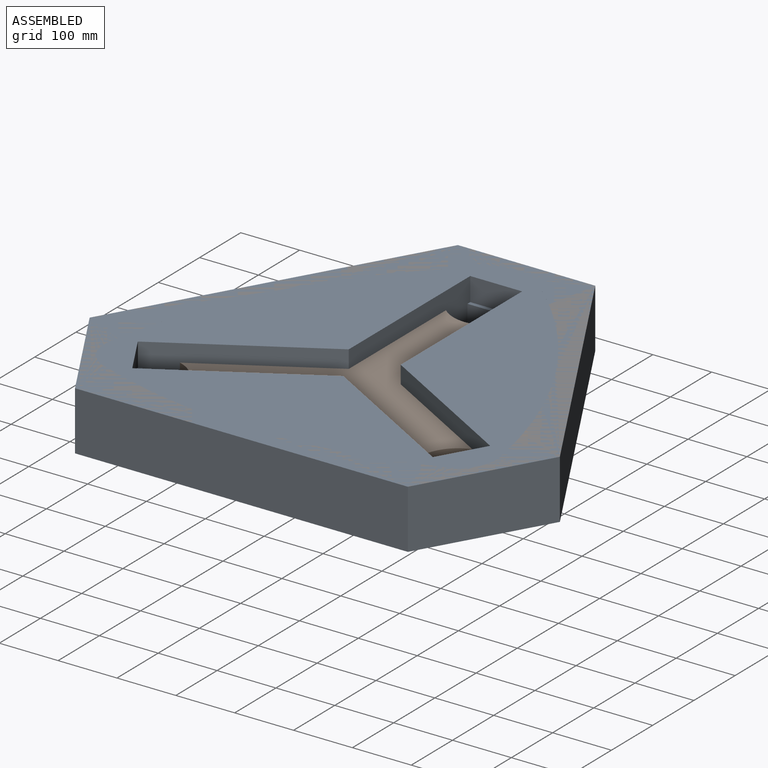
[diagram: assembled view]
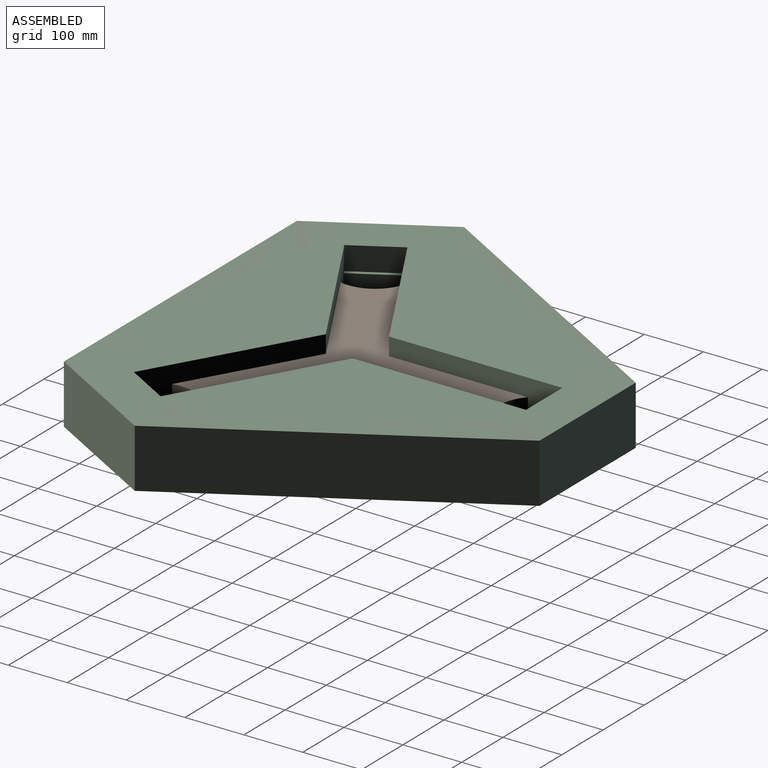
[diagram: assembled view, second angle]
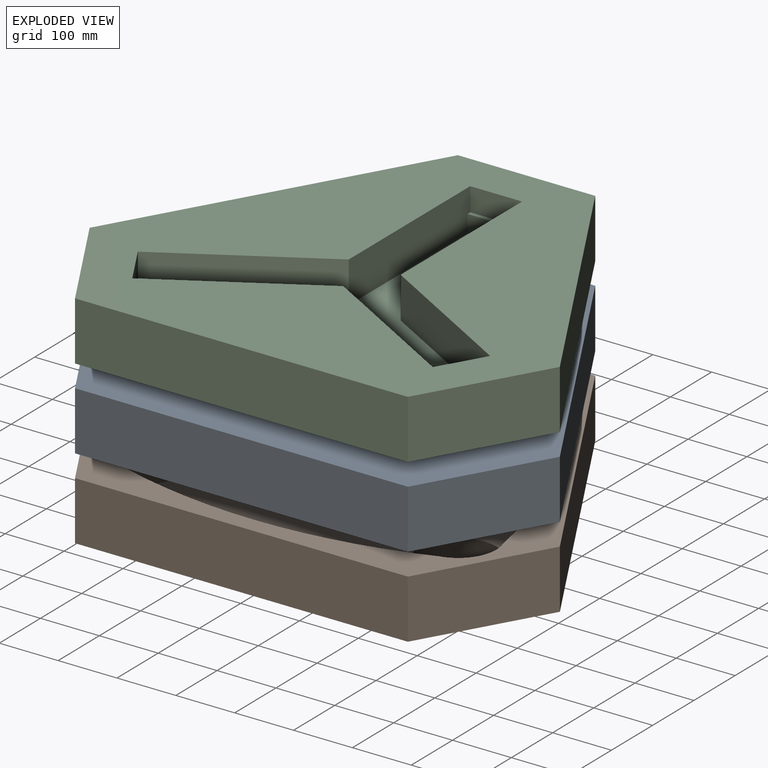
[diagram: exploded view]
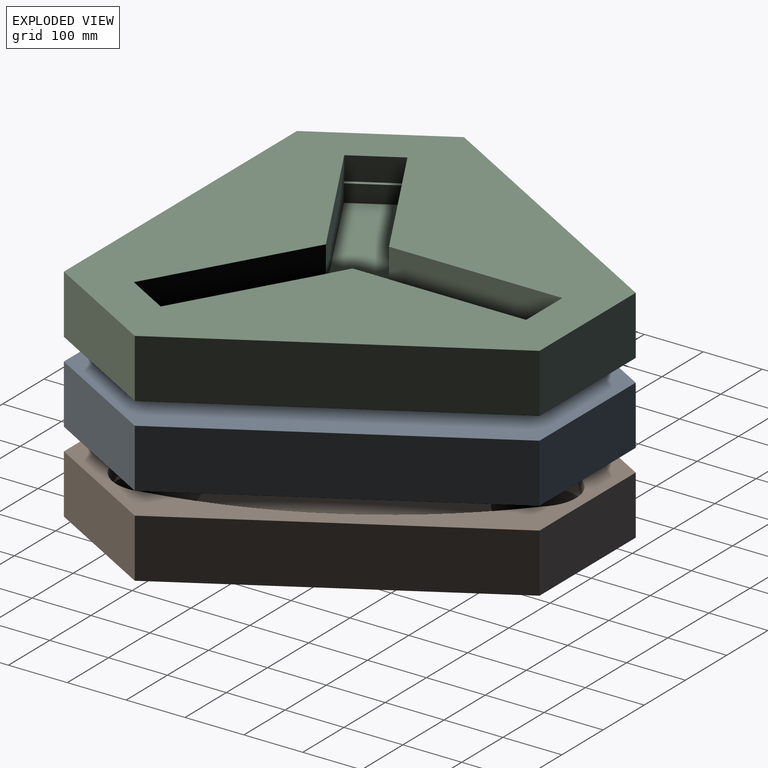
[diagram: exploded view, second angle]
FCSTD DOCUMENT  (FreeCAD 0.21R32532 (Git))
Label: styrofoam
License: All rights reserved
LicenseURL: http://en.wikipedia.org/wiki/All_rights_reserved
objects: Part::FeaturePython×10, Path::FeaturePython×9, App::DocumentObjectGroup×6, App::Link×3, App::FeaturePython×2
note: 15 computed .brp shape members not serialized (recipe doc carries the construction recipe); baked Part::Feature solids carry a one-line shape summary decoded from their .brp
EXTERNAL_REF file=composit_full_size2part_model.FCStd obj=top001
EXTERNAL_REF file=composit_full_size2part_model.FCStd obj=bottom001

FEATURE [App::Link] Link
  LinkedObject = -> <external composit_full_size2part_model.FCStd>#top001
  expr: LinkedObject = composit_full_size2part_model#top001._self
FEATURE [App::Link] Link001
  LinkedObject = -> <external composit_full_size2part_model.FCStd>#bottom001
  expr: LinkedObject = composit_full_size2part_model#bottom001._self
FEATURE [App::Link] Link002  label="top001"
  LinkedObject = -> <external composit_full_size2part_model.FCStd>#top001
FEATURE [App::FeaturePython] SetupSheet  # Path/CAM operation (typed FeaturePython)
  ClearanceHeightExpression = OpStockZMax+SetupSheet.ClearanceHeightOffset
  ClearanceHeightOffset = 5
  CoolantMode = 0
  CoolantModes = None | Flood | Mist
  FinalDepthExpression = OpFinalDepth
  HorizRapid = 0
  ProfileDirection = 1
  ProfileprocessCircles = true
  ProfileprocessHoles = true
  ProfileprocessPerimeter = true
  SafeHeightExpression = OpStockZMax+SetupSheet.SafeHeightOffset
  SafeHeightOffset = 3
  StartDepthExpression = OpStartDepth
  StepDownExpression = OpToolDiameter
  VertRapid = 0
FEATURE [Part::FeaturePython] Clone  label="Model-Link001"  # Draft clone (typed FeaturePython)
  AttacherType = Attacher::AttachEngine3D
  Fuse = false
  Objects = -> [Link001]
  PathResource = Model
  Placement = pos=(298,399.448,0) rot=(0,0,1;0.523599rad)
  Scale = (1,1,1)
FEATURE [Part::FeaturePython] Clone001  label="Model-top001"  # Draft clone (typed FeaturePython)
  AttacherType = Attacher::AttachEngine3D
  Fuse = false
  Objects = -> [Link002]
  PathResource = Model
  Placement = pos=(682,892.448,0) rot=(0,0,-1;0.523599rad)
  Scale = (1,1,1)
FEATURE [App::DocumentObjectGroup] Model
  Group = -> [Clone,Clone001]
FEATURE [Part::FeaturePython] Stock001  # WARN: FeaturePython — macro-defined, semantics opaque (R4)
  Height = 100
  Length = 1000
  StockType = CreateBox
  Width = 2000
FEATURE [Part::FeaturePython] ToolBit001  label="15.5mm Endmill"  # Path/CAM toolbit (typed FeaturePython)
  BitPropertyNames = Chipload | CuttingEdgeHeight | Diameter | Flutes | Length | Material | ShankDiameter | SpindleDirection
  BitShape = <path>
  Chipload = 0
  CuttingEdgeHeight = 80
  Diameter = 15.5
  File = <userpath>/.local/share/FreeCAD/Macro/Bit/15.5mm_Endmill.fctb
  Flutes = 0
  Length = 131
  Material = 0
  ShankDiameter = 10
  ShapeName = endmill
  SpindleDirection = 0
FEATURE [Path::FeaturePython] _5_5mm_Endmill  label="15.5mm Endmill001"  # Path/CAM operation (typed FeaturePython)
  HorizFeed = 100
  HorizRapid = 0
  SpindleDir = 0
  SpindleSpeed = 18000
  Tool = -> ToolBit001
  ToolNumber = 2
  VertFeed = 16.6667
  VertRapid = 0
  expr: HorizRapid = SetupSheet.HorizRapid
  expr: VertRapid = SetupSheet.VertRapid
FEATURE [App::DocumentObjectGroup] Tools
  Group = -> [_5_5mm_Endmill]
FEATURE [Path::FeaturePython] Pocket_Shape  # Path/CAM operation (typed FeaturePython)
  Active = true
  AreaParams:
    Tolerance = 1e-07
    FitArcs = True
    Simplify = False
    CleanDistance = 0.0
    Accuracy = 0.01
    Unit = 1.0
    MinArcPoints = 4
    MaxArcPoints = 100
    ClipperScale = 10000000.0
    Fill = 0
    Coplanar = 0
    Reorient = True
    Outline = False
    Explode = False
    OpenMode = 0
    Deflection = 0.01
    SubjectFill = 0
    ClipFill = 0
    Offset = 0.0
    ExtraPass = 0
    Stepover = 0.0
    LastStepover = 0.0
    JoinType = 0
    EndType = 0
    MiterLimit = 2.0
    RoundPrecision = 0.0
    PocketMode = 2
    ToolRadius = 7.75
    PocketExtraOffset = 0.0
    PocketStepover = 13.950000000000001
    PocketLastStepover = 0.0
    FromCenter = True
    Angle = 45.0
    AngleShift = 0.0
    Shift = 0.0
    Thicken = False
    SectionCount = -1
    Stepdown = 1.0
    SectionOffset = 0.0
    SectionTolerance = 1e-07
    SectionMode = 2
    Project = False
  Base = -> [Clone]
  ClearanceHeight = 105
  CoolantMode = 0
  CutMode = 0
  CycleTime = 00:03:19
  ExtensionCorners = true
  ExtensionLengthDefault = 7.75
  ExtraOffset = 0
  FinalDepth = 70
  FinishDepth = 0
  KeepToolDown = true
  MinTravel = false
  OffsetPattern = 1
  OpFinalDepth = 70
  OpStartDepth = 100
  OpStockZMax = 100
  OpStockZMin = 0
  OpToolDiameter = 15.5
  PathParams:
    orientation = 1
    feedrate = 100.0
    feedrate_v = 16.666666666666668
    verbose = True
    resume_height = 103.0
    retraction = 105.0
    return_end = True
    preamble = False
    threshold = 15.50775
  PocketLastStepOver = 0
  SafeHeight = 103
  SplitArcs = false
  StartAt = 0
  StartDepth = 100
  StartPoint = (0,0,0)
  StepDown = 80
  StepOver = 90
  ToolController = -> _5_5mm_Endmill
  UseOutline = false
  UseStartPoint = false
  ZigZagAngle = 45
  expr: ClearanceHeight = OpStockZMax + SetupSheet.ClearanceHeightOffset
  expr: ExtensionLengthDefault = OpToolDiameter / 2
  expr: FinalDepth = OpFinalDepth
  expr: SafeHeight = OpStockZMax + SetupSheet.SafeHeightOffset
  expr: StartDepth = OpStartDepth
FEATURE [Path::FeaturePython] Pocket_Shape001  # Path/CAM operation (typed FeaturePython)
  Active = true
  AreaParams:
    Tolerance = 1e-07
    FitArcs = True
    Simplify = False
    CleanDistance = 0.0
    Accuracy = 0.01
    Unit = 1.0
    MinArcPoints = 4
    MaxArcPoints = 100
    ClipperScale = 10000000.0
    Fill = 0
    Coplanar = 0
    Reorient = True
    Outline = False
    Explode = False
    OpenMode = 0
    Deflection = 0.01
    SubjectFill = 0
    ClipFill = 0
    Offset = 0.0
    ExtraPass = 0
    Stepover = 0.0
    LastStepover = 0.0
    JoinType = 0
    EndType = 0
    MiterLimit = 2.0
    RoundPrecision = 0.0
    PocketMode = 2
    ToolRadius = 7.75
    PocketExtraOffset = 0.0
    PocketStepover = 15.5
    PocketLastStepover = 0.0
    FromCenter = True
    Angle = 45.0
    AngleShift = 0.0
    Shift = 0.0
    Thicken = False
    SectionCount = -1
    Stepdown = 1.0
    SectionOffset = 0.0
    SectionTolerance = 1e-07
    SectionMode = 2
    Project = False
  Base = -> [Clone001]
  ClearanceHeight = 105
  CoolantMode = 0
  CutMode = 0
  CycleTime = 00:01:59
  ExtensionCorners = true
  ExtensionLengthDefault = 7.75
  ExtraOffset = 0
  FinalDepth = 30
  FinishDepth = 0
  KeepToolDown = true
  MinTravel = false
  OffsetPattern = 1
  OpFinalDepth = 30
  OpStartDepth = 100
  OpStockZMax = 100
  OpStockZMin = 0
  OpToolDiameter = 15.5
  PathParams:
    orientation = 1
    feedrate = 100.0
    feedrate_v = 16.666666666666668
    verbose = True
    resume_height = 103.0
    retraction = 105.0
    return_end = True
    preamble = False
    threshold = 15.50775
  PocketLastStepOver = 0
  SafeHeight = 103
  SplitArcs = false
  StartAt = 0
  StartDepth = 100
  StartPoint = (0,0,0)
  StepDown = 80
  StepOver = 100
  ToolController = -> _5_5mm_Endmill
  UseOutline = false
  UseStartPoint = false
  ZigZagAngle = 45
  expr: ClearanceHeight = OpStockZMax + SetupSheet.ClearanceHeightOffset
  expr: ExtensionLengthDefault = OpToolDiameter / 2
  expr: FinalDepth = OpFinalDepth
  expr: SafeHeight = OpStockZMax + SetupSheet.SafeHeightOffset
  expr: StartDepth = OpStartDepth
FEATURE [Path::FeaturePython] Pocket_Shape002  # Path/CAM operation (typed FeaturePython)
  Active = true
  AreaParams:
    Tolerance = 1e-07
    FitArcs = True
    Simplify = False
    CleanDistance = 0.0
    Accuracy = 0.01
    Unit = 1.0
    MinArcPoints = 4
    MaxArcPoints = 100
    ClipperScale = 10000000.0
    Fill = 0
    Coplanar = 0
    Reorient = True
    Outline = False
    Explode = False
    OpenMode = 0
    Deflection = 0.01
    SubjectFill = 0
    ClipFill = 0
    Offset = 0.0
    ExtraPass = 0
    Stepover = 0.0
    LastStepover = 0.0
    JoinType = 0
    EndType = 0
    MiterLimit = 2.0
    RoundPrecision = 0.0
    PocketMode = 2
    ToolRadius = 7.75
    PocketExtraOffset = 0.0
    PocketStepover = 15.5
    PocketLastStepover = 0.0
    FromCenter = True
    Angle = 45.0
    AngleShift = 0.0
    Shift = 0.0
    Thicken = False
    SectionCount = -1
    Stepdown = 1.0
    SectionOffset = 0.0
    SectionTolerance = 1e-07
    SectionMode = 2
    Project = False
  Base = -> [Clone001]
  ClearanceHeight = 105
  CoolantMode = 0
  CutMode = 0
  CycleTime = 00:01:02
  ExtensionCorners = true
  ExtensionLengthDefault = 7.75
  ExtraOffset = 0
  FinalDepth = 60
  FinishDepth = 0
  KeepToolDown = true
  MinTravel = false
  OffsetPattern = 1
  OpFinalDepth = 60
  OpStartDepth = 100
  OpStockZMax = 100
  OpStockZMin = 0
  OpToolDiameter = 15.5
  PathParams = {'orientation': 1, 'feedrate': 100.0, 'feedrate_v': 16.666666666666668, 'verbose': True, 'resume_height': 103.0, 'retraction': 105.0, 'return_end': True, 'preamble': False, 'threshold': 15.50775, 'start': Vector (826.935811360026, 1192.9345651841047, 60.00000000000003)}
  PocketLastStepOver = 0
  SafeHeight = 103
  SplitArcs = false
  StartAt = 0
  StartDepth = 100
  StartPoint = (0,0,0)
  StepDown = 80
  StepOver = 100
  ToolController = -> _5_5mm_Endmill
  UseOutline = false
  UseStartPoint = false
  ZigZagAngle = 45
  expr: ClearanceHeight = OpStockZMax + SetupSheet.ClearanceHeightOffset
  expr: ExtensionLengthDefault = OpToolDiameter / 2
  expr: FinalDepth = OpFinalDepth
  expr: SafeHeight = OpStockZMax + SetupSheet.SafeHeightOffset
  expr: StartDepth = OpStartDepth
FEATURE [Path::FeaturePython] Profile  # Path/CAM operation (typed FeaturePython)
  Active = true
  AreaParams:
    Tolerance = 1e-07
    FitArcs = True
    Simplify = False
    CleanDistance = 0.0
    Accuracy = 0.01
    Unit = 1.0
    MinArcPoints = 4
    MaxArcPoints = 100
    ClipperScale = 10000000.0
    Fill = 0
    Coplanar = 0
    Reorient = True
    Outline = False
    Explode = False
    OpenMode = 0
    Deflection = 0.01
    SubjectFill = 0
    ClipFill = 0
    Offset = 7.75
    ExtraPass = 0
    Stepover = 0.0
    LastStepover = 0.0
    JoinType = 0
    EndType = 0
    MiterLimit = 2.0
    RoundPrecision = 0.0
    PocketMode = 0
    ToolRadius = 1.0
    PocketExtraOffset = 0.0
    PocketStepover = 0.0
    PocketLastStepover = 0.0
    FromCenter = False
    Angle = 45.0
    AngleShift = 0.0
    Shift = 0.0
    Thicken = False
    SectionCount = -1
    Stepdown = 1.0
    SectionOffset = 0.0
    SectionTolerance = 1e-07
    SectionMode = 2
    Project = False
  Base = -> [Clone,Clone001]
  ClearanceHeight = 105
  CoolantMode = 0
  CycleTime = 00:03:11
  Direction = 1
  FinalDepth = 0
  HandleMultipleFeatures = 0
  JoinType = 0
  MiterLimit = 0.1
  OffsetExtra = 0
  OpFinalDepth = 0
  OpStartDepth = 100
  OpStockZMax = 100
  OpStockZMin = 0
  OpToolDiameter = 15.5
  PathParams = {'orientation': 0, 'feedrate': 100.0, 'feedrate_v': 16.666666666666668, 'verbose': True, 'resume_height': 103.0, 'retraction': 105.0, 'return_end': True, 'preamble': False, 'start': Vector (561.5251292985396, 429.90513612923536, 105.0)}
  SafeHeight = 103
  Side = 0
  SplitArcs = false
  StartDepth = 100
  StartPoint = (0,0,0)
  StepDown = 50
  ToolController = -> _5_5mm_Endmill
  UseComp = true
  UseStartPoint = false
  processCircles = true
  processHoles = true
  processPerimeter = true
  expr: ClearanceHeight = OpStockZMax + SetupSheet.ClearanceHeightOffset
  expr: FinalDepth = OpFinalDepth
  expr: SafeHeight = OpStockZMax + SetupSheet.SafeHeightOffset
  expr: StartDepth = OpStartDepth
  expr: StepDown = 50
FEATURE [App::DocumentObjectGroup] Operations
  Group = -> [Pocket_Shape,Pocket_Shape001,Pocket_Shape002,Profile]
FEATURE [Path::FeaturePython] Job  # Path/CAM operation (typed FeaturePython)
  CycleTime = 00:09:31
  Fixtures = G54
  GeometryTolerance = 0.01
  JobType = 0
  LastPostProcessDate = 2023-04-08 16:07:30.952859
  LastPostProcessOutput = <userpath>/56D3-E9D0/1.tap
  Model = -> Model
  Operations = -> Operations
  OrderOutputBy = 0
  PostProcessor = 1
  PostProcessorOutputFile = %d.%j.tap
  SetupSheet = -> SetupSheet
  SplitOutput = false
  Stock = -> Stock001
  Tools = -> Tools
FEATURE [App::FeaturePython] SetupSheet001  # Path/CAM operation (typed FeaturePython)
  ClearanceHeightExpression = OpStockZMax+SetupSheet001.ClearanceHeightOffset
  ClearanceHeightOffset = 5
  CoolantMode = 0
  CoolantModes = None | Flood | Mist
  FinalDepthExpression = OpFinalDepth
  HorizRapid = 0
  ProfileDirection = 1
  ProfileprocessCircles = true
  ProfileprocessHoles = true
  ProfileprocessPerimeter = true
  SafeHeightExpression = OpStockZMax+SetupSheet001.SafeHeightOffset
  SafeHeightOffset = 3
  StartDepthExpression = OpStartDepth
  StepDownExpression = OpToolDiameter
  VertRapid = 0
FEATURE [Part::FeaturePython] Clone002  label="Model-Link"  # Draft clone (typed FeaturePython)
  AttacherType = Attacher::AttachEngine3D
  Fuse = false
  Objects = -> [Link]
  PathResource = Model
  Placement = pos=(400.448,299,0) rot=(0,0,1;0rad)
  Scale = (1,1,1)
FEATURE [Part::FeaturePython] Clone003  label="Model-Link002"  # Draft clone (typed FeaturePython)
  AttacherType = Attacher::AttachEngine3D
  Fuse = false
  Objects = -> [Link]
  PathResource = Model
  Placement = pos=(400.448,995,0) rot=(0,0,1;0rad)
  Scale = (1,1,1)
FEATURE [Part::FeaturePython] Clone004  label="Model-Link003"  # Draft clone (typed FeaturePython)
  AttacherType = Attacher::AttachEngine3D
  Fuse = false
  Objects = -> [Link]
  PathResource = Model
  Placement = pos=(1038.45,393.865,0) rot=(0,0,1;3.14159rad)
  Scale = (1,1,1)
FEATURE [Part::FeaturePython] Clone005  label="Model-Link004"  # Draft clone (typed FeaturePython)
  AttacherType = Attacher::AttachEngine3D
  Fuse = false
  Objects = -> [Link]
  PathResource = Model
  Placement = pos=(1038.45,1089.86,0) rot=(0,0,1;3.14159rad)
  Scale = (1,1,1)
FEATURE [App::DocumentObjectGroup] Model001
  Group = -> [Clone002,Clone003,Clone004,Clone005]
FEATURE [Part::FeaturePython] ToolBit  label="3.175mm Endmill"  # Path/CAM toolbit (typed FeaturePython)
  BitPropertyNames = Chipload | CuttingEdgeHeight | Diameter | Flutes | Length | Material | ShankDiameter | SpindleDirection
  BitShape = <path>
  Chipload = 0
  CuttingEdgeHeight = 30
  Diameter = 3.17
  Flutes = 0
  Length = 10
  Material = 0
  ShankDiameter = 3
  ShapeName = endmill
  SpindleDirection = 0
FEATURE [Path::FeaturePython] __175mm_Endmill  label="3.175mm Endmill001"  # Path/CAM operation (typed FeaturePython)
  HorizFeed = 51.6667
  HorizRapid = 0
  SpindleDir = 0
  SpindleSpeed = 18000
  Tool = -> ToolBit
  ToolNumber = 1
  VertFeed = 16.6667
  VertRapid = 0
  expr: HorizRapid = SetupSheet001.HorizRapid
  expr: VertRapid = SetupSheet001.VertRapid
FEATURE [App::DocumentObjectGroup] Tools001
  Group = -> [__175mm_Endmill]
FEATURE [Part::FeaturePython] Stock  # WARN: FeaturePython — macro-defined, semantics opaque (R4)
  Base = -> Model001
  ExtXneg = 1
  ExtXpos = 1
  ExtYneg = 1
  ExtYpos = 1
  ExtZneg = 0
  ExtZpos = 1
  Placement = pos=(1,1,0) rot=(0,0,1;0rad)
  StockType = FromBase
FEATURE [Path::FeaturePython] Profile001  # Path/CAM operation (typed FeaturePython)
  Active = true
  AreaParams:
    Tolerance = 1e-07
    FitArcs = True
    Simplify = False
    CleanDistance = 0.0
    Accuracy = 0.01
    Unit = 1.0
    MinArcPoints = 4
    MaxArcPoints = 100
    ClipperScale = 10000000.0
    Fill = 0
    Coplanar = 0
    Reorient = True
    Outline = False
    Explode = False
    OpenMode = 0
    Deflection = 0.01
    SubjectFill = 0
    ClipFill = 0
    Offset = 1.585
    ExtraPass = 0
    Stepover = 0.0
    LastStepover = 0.0
    JoinType = 0
    EndType = 0
    MiterLimit = 2.0
    RoundPrecision = 0.0
    PocketMode = 0
    ToolRadius = 1.0
    PocketExtraOffset = 0.0
    PocketStepover = 0.0
    PocketLastStepover = 0.0
    FromCenter = False
    Angle = 45.0
    AngleShift = 0.0
    Shift = 0.0
    Thicken = False
    SectionCount = -1
    Stepdown = 1.0
    SectionOffset = 0.0
    SectionTolerance = 1e-07
    SectionMode = 2
    Project = False
  ClearanceHeight = 106
  CoolantMode = 0
  CycleTime = 00:04:30
  Direction = 1
  FinalDepth = 0
  HandleMultipleFeatures = 0
  JoinType = 0
  MiterLimit = 0.1
  OffsetExtra = 0
  OpFinalDepth = 0
  OpStartDepth = 101
  OpStockZMax = 101
  OpStockZMin = 0
  OpToolDiameter = 3.17
  PathParams = {'orientation': 0, 'feedrate': 51.666666666666664, 'feedrate_v': 16.666666666666668, 'verbose': True, 'resume_height': 104.00000000000028, 'retraction': 106.00000000000028, 'return_end': True, 'preamble': False, 'start': Vector (920.4072486770419, 695.1509324027542, 106.00000000000028)}
  SafeHeight = 104
  Side = 0
  SplitArcs = false
  StartDepth = 101
  StartPoint = (0,0,0)
  StepDown = 200
  ToolController = -> __175mm_Endmill
  UseComp = true
  UseStartPoint = false
  processCircles = true
  processHoles = true
  processPerimeter = true
  expr: ClearanceHeight = OpStockZMax + SetupSheet001.ClearanceHeightOffset
  expr: FinalDepth = OpFinalDepth
  expr: SafeHeight = OpStockZMax + SetupSheet001.SafeHeightOffset
  expr: StartDepth = OpStartDepth
  expr: StepDown = 200
FEATURE [App::DocumentObjectGroup] Operations001
  Group = -> [Profile001]
FEATURE [Path::FeaturePython] Job001  # Path/CAM operation (typed FeaturePython)
  CycleTime = 00:04:30
  Fixtures = G54
  GeometryTolerance = 0.01
  JobType = 0
  LastPostProcessDate = 2023-04-08 17:28:22.128911
  LastPostProcessOutput = <userpath>/56D3-E9D0/1.tap
  Model = -> Model001
  Operations = -> Operations001
  OrderOutputBy = 0
  PostProcessor = 1
  PostProcessorOutputFile = %d.%j.tap
  SetupSheet = -> SetupSheet001
  SplitOutput = false
  Stock = -> Stock
  Tools = -> Tools001
note: 2 file-system paths scrubbed to <path> (originals preserved in the JSON sidecar)

RESOLVED EXTERNAL PARTS (link-assembly join: the EXTERNAL_REF files above that resolve inside this repo's crawl, each included once):
---- part composit_full_size2part_model.FCStd = doc fcstd_fdf0de63ef48 ----
FCSTD DOCUMENT  (FreeCAD 0.21R32532 (Git))
Label: composit_full_size2part_model
License: All rights reserved
LicenseURL: http://en.wikipedia.org/wiki/All_rights_reserved
objects: App::Link×31, Part::FeaturePython×10, Sketcher::SketchObject×6, PartDesign::CoordinateSystem×4, PartDesign::SubShapeBinder×4, PartDesign::Pocket×4, App::DocumentObjectGroup×3, PartDesign::Body×3, PartDesign::Pad×2, App::FeaturePython×1, Part::Feature×1, PartDesign::FeatureBase×1, PartDesign::PolarPattern×1, App::Part×1
note: 42 computed .brp shape members not serialized (recipe doc carries the construction recipe); baked Part::Feature solids carry a one-line shape summary decoded from their .brp
EXTERNAL_REF file=composit_full_size2part.FCStd obj=Local_CS011
EXTERNAL_REF file=composit_full_size2part.FCStd obj=Body
EXTERNAL_REF file=composit_full_size2part.FCStd obj=Local_CS012
EXTERNAL_REF file=composit_full_size2part.FCStd obj=Body001
EXTERNAL_REF file=composit_full_size2part.FCStd obj=DatumPoint005
EXTERNAL_REF file=composit_full_size2part.FCStd obj=Local_CS066
EXTERNAL_REF file=composit_full_size2part.FCStd obj=Body020
EXTERNAL_REF file=basin_big.FCStd obj=Body_7
EXTERNAL_REF file=composit_full_size2part.FCStd obj=Body022
EXTERNAL_REF file=composit_full_size2part.FCStd obj=Local_CS051
EXTERNAL_REF file=composit_full_size2part.FCStd obj=Body019
EXTERNAL_REF file=composit_full_size2part.FCStd obj=Local_CS050
EXTERNAL_REF file=composit_full_size2part.FCStd obj=Local_CS052
EXTERNAL_REF file=composit_full_size2part.FCStd obj=basement_plywood
EXTERNAL_REF file=composit_full_size2part.FCStd obj=LCS_0
EXTERNAL_REF file=hub2108.FCStd obj=Local_CS001
EXTERNAL_REF file=hub2108.FCStd obj=Body
EXTERNAL_REF file=composit_full_size2part.FCStd obj=Local_CS068
EXTERNAL_REF file=hub2108.FCStd obj=Local_CS
EXTERNAL_REF file=composit_full_size2part.FCStd obj=Body042
EXTERNAL_REF file=composit_full_size2part.FCStd obj=Local_CS054
EXTERNAL_REF file=composit_full_size2part.FCStd obj=Local_CS067
EXTERNAL_REF file=composit_full_size2part.FCStd obj=Body028
EXTERNAL_REF file=composit_full_size2part.FCStd obj=Local_CS055
EXTERNAL_REF file=composit_full_size2part.FCStd obj=Local_CS069
EXTERNAL_REF file=composit_full_size2part.FCStd obj=Body029
EXTERNAL_REF file=composit_full_size2part.FCStd obj=Local_CS058
EXTERNAL_REF file=composit_full_size2part.FCStd obj=Local_CS059
EXTERNAL_REF file=composit_full_size2part.FCStd obj=Body034
EXTERNAL_REF file=composit_full_size2part.FCStd obj=Local_CS001
EXTERNAL_REF file=composit_full_size2part.FCStd obj=Local_CS064
EXTERNAL_REF file=composit_full_size2part.FCStd obj=Body041
EXTERNAL_REF file=composit_full_size2part.FCStd obj=Local_CS060
EXTERNAL_REF file=composit_full_size2part.FCStd obj=Local_CS061
EXTERNAL_REF file=composit_full_size2part.FCStd obj=Body033
EXTERNAL_REF file=composit_full_size2part.FCStd obj=Body045
EXTERNAL_REF file=composit_full_size2part.FCStd obj=Body048
EXTERNAL_REF file=composit_full_size2part.FCStd obj=Local_CS070
EXTERNAL_REF file=composit_full_size2part.FCStd obj=Part002
EXTERNAL_REF file=composit_full_size2part.FCStd obj=LCS_024
EXTERNAL_REF file=composit_full_size2part.FCStd obj=plexiglasss_shield
EXTERNAL_REF file=composit_full_size2part.FCStd obj=Local_CS005
EXTERNAL_REF file=ugol90degX40mm.FCStd obj=Local_CS
EXTERNAL_REF file=ugol90degX40mm.FCStd obj=Body
EXTERNAL_REF file=../Ручка-профиль CT2 L60.FCStd obj=Local_CS
EXTERNAL_REF file=../Ручка-профиль CT2 L60.FCStd obj=Body
EXTERNAL_REF file=composit_full_size2part.FCStd obj=Body049
EXTERNAL_REF file=composit_full_size2part.FCStd obj=Body043
EXTERNAL_REF file=composit_full_size2part.FCStd obj=Body026
EXTERNAL_REF file=composit_full_size2part.FCStd obj=Body050
EXTERNAL_REF file=composit_full_size2part.FCStd obj=Body051
EXTERNAL_REF file=composit_full_size2part.FCStd obj=Body054
EXTERNAL_REF file=composit_full_size2part_transport.FCStd obj=Body001
EXTERNAL_REF file=composit_full_size2part_transport.FCStd obj=Body
EXTERNAL_REF file=composit_full_size2part.FCStd obj=Local_CS073
EXTERNAL_REF file=composit_full_size2part.FCStd obj=Body058

FEATURE [PartDesign::CoordinateSystem] LCS_Origin
  AttacherType = Attacher::AttachEngine3D
  MapMode = 2
  Support = -> [X_Axis]
FEATURE [App::DocumentObjectGroup] Constraints
FEATURE [App::FeaturePython] Variables  # WARN: FeaturePython — macro-defined, semantics opaque (R4)
  Type = App::PropertyContainer
FEATURE [App::DocumentObjectGroup] Configurations
FEATURE [App::Link] Body_material_0_30ansi  label="Body_material_0.30ansi"
  AssemblyType = Part::Link
  AttachedBy = #Local_CS011
  AttachedTo = Parent Assembly#LCS_Origin
  LinkPlacement = pos=(0,8.37158,0) rot=(0,0,1;0rad)
  LinkedObject = -> <external composit_full_size2part.FCStd>#Body
  Placement = pos=(0,8.37158,0) rot=(0,0,1;0rad)
  SolverId = Asm4EE
  expr: Placement = LCS_Origin.Placement * AttachmentOffset * composit_full_size2part#Local_CS011.Placement ^ -1
FEATURE [App::Link] Body001_material_0_30ansi  label="Body001_material_0.30ansi"
  AssemblyType = Part::Link
  AttachedBy = #Local_CS012
  AttachedTo = Parent Assembly#LCS_Origin
  AttachmentOffset = pos=(0,0,0) rot=(0,0,1;4.18879rad)
  LinkPlacement = pos=(7.25,-4.18579,0) rot=(0,0,1;4.18879rad)
  LinkedObject = -> <external composit_full_size2part.FCStd>#Body001
  Placement = pos=(7.25,-4.18579,0) rot=(0,0,1;4.18879rad)
  SolverId = Asm4EE
  expr: Placement = LCS_Origin.Placement * AttachmentOffset * composit_full_size2part#Local_CS012.Placement ^ -1
FEATURE [App::Link] hor_amplifier
  AssemblyType = Part::Link
  AttachedBy = #Local_CS066
  AttachedTo = Body_material_0_30ansi#DatumPoint005
  AttachmentOffset = pos=(0,0,0) rot=(1,0,0;4.71239rad)
  LinkPlacement = pos=(1.7e-15,201.803,407.176) rot=(1,0,0;3.19975rad)
  LinkedObject = -> <external composit_full_size2part.FCStd>#Body020
  Placement = pos=(1.7e-15,201.803,407.176) rot=(1,0,0;3.19975rad)
  SolverId = Asm4EE
  expr: Placement = Body_material_0_30ansi.Placement * composit_full_size2part#DatumPoint005.Placement * AttachmentOffset * composit_full_size2part#Local_CS066.Placement ^ -1
FEATURE [PartDesign::CoordinateSystem] Local_CS044
  AttacherType = Attacher::AttachEngine3D
  MapMode = 4
  Placement = pos=(0,0,0) rot=(0.57735,0.57735,0.57735;2.0944rad)
  Support = -> [XY_Plane044]
FEATURE [Part::Feature] Part__Feature  label="module002"
  shape: bbox 170 x 148 x 41.12 mm, 715 faces (baked)
FEATURE [PartDesign::FeatureBase] BaseFeature
  BaseFeature = -> Part__Feature
FEATURE [PartDesign::Body] Body017
  BaseFeature = -> Part__Feature
  Group = -> [BaseFeature,Local_CS044]
  Origin = -> Origin044
  Tip = -> BaseFeature
FEATURE [App::DocumentObjectGroup] Parts
  Group = -> [Body017,Part__Feature]
FEATURE [App::Link] Body024_material_0_30ansi  label="Body024_material_0.30ansi"
  AssemblyType = Part::Link
  AttachedBy = #Local_CS049
  AttachedTo = Parent Assembly#LCS_Origin
  AttachmentOffset = pos=(0,0,3) rot=(0,0,1;-1.0472rad)
  LinkPlacement = pos=(0,0,3) rot=(0,0,1;5.23599rad)
  Placement = pos=(0,0,3) rot=(0,0,1;5.23599rad)
  SolverId = Asm4EE
  expr: Placement = LCS_Origin.Placement * AttachmentOffset * composit_full_size2part#Local_CS049.Placement ^ -1
FEATURE [App::Link] basin
  AssemblyType = Part::Link
  AttachedBy = #LCS_021
  AttachedTo = Parent Assembly#LCS_Origin
  LinkedObject = -> <external basin_big.FCStd>#Body_7
  SolverId = Asm4EE
  expr: LinkedObject = <<basin_big>>#<<basin>>._self
FEATURE [App::Link] basin_limiter_body
  LinkPlacement = pos=(0,0,0) rot=(0,0,1;2.0944rad)
  LinkedObject = -> <external composit_full_size2part.FCStd>#Body022
  Placement = pos=(0,0,0) rot=(0,0,1;2.0944rad)
FEATURE [App::Link] basement_proxy
  AssemblyType = Part::Link
  AttachedBy = #Local_CS051
  AttachedTo = Parent Assembly#LCS_Origin
  AttachmentOffset = pos=(0,0,0) rot=(0,0,1;-3.14159rad)
  LinkPlacement = pos=(0,0,-3) rot=(0,0,1;3.14159rad)
  LinkedObject = -> <external composit_full_size2part.FCStd>#Body019
  Placement = pos=(0,0,-3) rot=(0,0,1;3.14159rad)
  SolverId = Asm4EE
  expr: Placement = LCS_Origin.Placement * AttachmentOffset * composit_full_size2part#Local_CS051.Placement ^ -1
FEATURE [App::Link] basement_plywood
  AssemblyType = Part::Link
  AttachedBy = #Local_CS052
  AttachedTo = basement_proxy#Local_CS050
  AttachmentOffset = pos=(0,0,0) rot=(0,0,1;2.0944rad)
  LinkPlacement = pos=(0,0,-21) rot=(0,0,1;5.23599rad)
  LinkedObject = -> <external composit_full_size2part.FCStd>#basement_plywood
  Placement = pos=(0,0,-21) rot=(0,0,1;5.23599rad)
  SolverId = Asm4EE
  expr: Placement = basement_proxy.Placement * composit_full_size2part#Local_CS050.Placement * AttachmentOffset * composit_full_size2part#Local_CS052.Placement ^ -1
FEATURE [App::Link] hub2108
  AssemblyType = Part::Link
  AttachedBy = #Local_CS001
  AttachedTo = basement_plywood#LCS_0
  LinkPlacement = pos=(0,0,-88) rot=(0,0,1;5.23599rad)
  LinkedObject = -> <external hub2108.FCStd>#Body
  Placement = pos=(0,0,-88) rot=(0,0,1;5.23599rad)
  SolverId = Asm4EE
  expr: Placement = basement_plywood.Placement * composit_full_size2part#LCS_0.Placement * AttachmentOffset * hub2108#Local_CS001.Placement ^ -1
FEATURE [App::Link] basement2_proxy
  AssemblyType = Part::Link
  AttachedBy = #Local_CS068
  AttachedTo = hub2108#Local_CS
  AttachmentOffset = pos=(0,0,0) rot=(0,0,1;1.0472rad)
  LinkPlacement = pos=(0,0,-91) rot=(0,0,1;0rad)
  LinkedObject = -> <external composit_full_size2part.FCStd>#Body042
  Placement = pos=(0,0,-91) rot=(0,0,1;0rad)
  SolverId = Asm4EE
  expr: Placement = hub2108.Placement * hub2108#Local_CS.Placement * AttachmentOffset * composit_full_size2part#Local_CS068.Placement ^ -1
FEATURE [App::Link] plywood_basement_2
  AssemblyType = Part::Link
  AttachedBy = #Local_CS054
  AttachedTo = basement2_proxy#Local_CS067
  LinkPlacement = pos=(0,0,-109) rot=(0,0,1;0rad)
  LinkedObject = -> <external composit_full_size2part.FCStd>#Body028
  Placement = pos=(0,0,-109) rot=(0,0,1;0rad)
  SolverId = Asm4EE
  expr: Placement = basement2_proxy.Placement * composit_full_size2part#Local_CS067.Placement * AttachmentOffset * composit_full_size2part#Local_CS054.Placement ^ -1
FEATURE [App::Link] pillar_material_0_30ansi  label="pillar_material_0.30ansi"
  AssemblyType = Part::Link
  AttachedBy = #Local_CS055
  AttachedTo = basement2_proxy#Local_CS069
  LinkPlacement = pos=(1.705e-13,384,-88) rot=(0,0,1;0rad)
  LinkedObject = -> <external composit_full_size2part.FCStd>#Body029
  Placement = pos=(1.705e-13,384,-88) rot=(0,0,1;0rad)
  SolverId = Asm4EE
  expr: Placement = basement2_proxy.Placement * composit_full_size2part#Local_CS069.Placement * AttachmentOffset * composit_full_size2part#Local_CS055.Placement ^ -1
FEATURE [App::Link] pillar_corner_bottom_material_0_30ansi  label="pillar_corner_bottom_material_0.30ansi"
  AssemblyType = Part::Link
  AttachedBy = #Local_CS058
  AttachedTo = pillar_material_0_30ansi#Local_CS059
  LinkPlacement = pos=(18.3,329.5,-88) rot=(0,0,1;1.5708rad)
  LinkedObject = -> <external composit_full_size2part.FCStd>#Body034
  Placement = pos=(18.3,329.5,-88) rot=(0,0,1;1.5708rad)
  SolverId = Asm4EE
  expr: Placement = pillar_material_0_30ansi.Placement * composit_full_size2part#Local_CS059.Placement * AttachmentOffset * composit_full_size2part#Local_CS058.Placement ^ -1
FEATURE [App::Link] Part
  AssemblyType = Part::Link
  AttachedBy = #Local_CS028
  AttachedTo = Body_material_0_30ansi#Local_CS001
  AttachmentOffset = pos=(0,0,3) rot=(0,0,1;3.14159rad)
  LinkPlacement = pos=(0,181.372,1431) rot=(0,0,1;3.14159rad)
  Placement = pos=(0,181.372,1431) rot=(0,0,1;3.14159rad)
  SolverId = Asm4EE
  expr: Placement = Body_material_0_30ansi.Placement * composit_full_size2part#Local_CS001.Placement * AttachmentOffset * composit_full_size2part#Local_CS028.Placement ^ -1
FEATURE [Part::FeaturePython] Circular_Part  # Draft array (typed FeaturePython)
  AngleStep = 120
  ArrayType = Circular Array
  Axis = -> Z_Axis
  Count = 3
  Index = 1
  PlacementList = 3 placements: [(-1.00974e-28,181.372,1431),(-157.072,-90.6858,1431),(157.072,-90.6858,1431)]
  Placer = pos=(0,0,0) rot=(0,0,1;4.18879rad)
  ScaleList = (3) [(1,1,1),(1,1,1),(1,1,1)]
  Scaler = 1
  ShowElement = false
  SourceObject = -> Part
  expr: .Placer.Rotation.Angle = AngleStep * Index
  expr: AngleStep = 360 / Count
FEATURE [App::Link] Body041_material_0_30ansi  label="Body041_material_0.30ansi"
  AssemblyType = Part::Link
  AttachedBy = #Local_CS064
  AttachedTo = basement2_proxy#Local_CS069
  AttachmentOffset = pos=(0,16.7,514) rot=(0,0,1;4.71239rad)
  LinkPlacement = pos=(1.611e-13,367.3,426) rot=(1,0,0;1.5708rad)
  LinkedObject = -> <external composit_full_size2part.FCStd>#Body041
  Placement = pos=(1.611e-13,367.3,426) rot=(1,0,0;1.5708rad)
  SolverId = Asm4EE
  expr: Placement = basement2_proxy.Placement * composit_full_size2part#Local_CS069.Placement * AttachmentOffset * composit_full_size2part#Local_CS064.Placement ^ -1
FEATURE [App::Link] pillar_corner_top_material_0_30ansi  label="pillar_corner_top_material_0.30ansi"
  AssemblyType = Part::Link
  AttachedBy = #Local_CS061
  AttachedTo = pillar_material_0_30ansi#Local_CS060
  LinkPlacement = pos=(1.696e-13,382,1506) rot=(0,0,1;0rad)
  LinkedObject = -> <external composit_full_size2part.FCStd>#Body033
  Placement = pos=(1.696e-13,382,1506) rot=(0,0,1;0rad)
  SolverId = Asm4EE
  expr: Placement = pillar_material_0_30ansi.Placement * composit_full_size2part#Local_CS060.Placement * AttachmentOffset * composit_full_size2part#Local_CS061.Placement ^ -1
FEATURE [Part::FeaturePython] Circular_pillar_material_0_30ansi  label="Circular_pillar_material_0.30ansi"  # Draft array (typed FeaturePython)
  AngleStep = 120
  ArrayType = Circular Array
  Axis = -> Z_Axis
  Count = 3
  Index = 1
  PlacementList = 3 placements: [(1.7053e-13,384,-88),(-332.554,-192,-88),(332.554,-192,-88)]
  Placer = pos=(0,0,0) rot=(0,0,1;4.18879rad)
  ScaleList = (3) [(1,1,1),(1,1,1),(1,1,1)]
  Scaler = 1
  ShowElement = false
  SourceObject = -> pillar_material_0_30ansi
  expr: .Placer.Rotation.Angle = AngleStep * Index
  expr: AngleStep = 360 / Count
FEATURE [Part::FeaturePython] Circular_pillar_corner_bottom_material_0_30ansi  label="Circular_pillar_corner_bottom_material_0.30ansi"  # Draft array (typed FeaturePython)
  AngleStep = 120
  ArrayType = Circular Array
  Axis = -> Z_Axis
  Count = 3
  Index = 1
  PlacementList = 3 placements: [(18.3,329.5,-88),(-294.505,-148.902,-88),(276.205,-180.598,-88)]
  Placer = pos=(0,0,0) rot=(0,0,1;4.18879rad)
  ScaleList = (3) [(1,1,1),(1,1,1),(1,1,1)]
  Scaler = 1
  ShowElement = false
  SourceObject = -> pillar_corner_bottom_material_0_30ansi
  expr: .Placer.Rotation.Angle = AngleStep * Index
  expr: AngleStep = 360 / Count
FEATURE [Part::FeaturePython] Circular_Body041_material_0_30ansi  label="Circular_Body041_material_0.30ansi"  # Draft array (typed FeaturePython)
  AngleStep = 120
  ArrayType = Circular Array
  Axis = -> Z_Axis
  Count = 3
  Index = 1
  PlacementList = 3 placements: [(1.61069e-13,367.3,426),(-318.091,-183.65,426),(318.091,-183.65,426)]
  Placer = pos=(0,0,0) rot=(0,0,1;4.18879rad)
  ScaleList = (3) [(1,1,1),(1,1,1),(1,1,1)]
  Scaler = 1
  ShowElement = false
  SourceObject = -> Body041_material_0_30ansi
  expr: .Placer.Rotation.Angle = AngleStep * Index
  expr: AngleStep = 360 / Count
FEATURE [Part::FeaturePython] Circular_pillar_corner_top_material_0_30ansi  label="Circular_pillar_corner_top_material_0.30ansi"  # Draft array (typed FeaturePython)
  AngleStep = 120
  ArrayType = Circular Array
  Axis = -> Z_Axis
  Count = 3
  Index = 1
  PlacementList = 3 placements: [(1.69642e-13,382,1506),(-330.822,-191,1506),(330.822,-191,1506)]
  Placer = pos=(0,0,0) rot=(0,0,1;4.18879rad)
  ScaleList = (3) [(1,1,1),(1,1,1),(1,1,1)]
  Scaler = 1
  ShowElement = false
  SourceObject = -> pillar_corner_top_material_0_30ansi
  expr: .Placer.Rotation.Angle = AngleStep * Index
  expr: AngleStep = 360 / Count
FEATURE [App::Link] Body045_material_0_30ansi  label="Body045_material_0.30ansi"
  LinkPlacement = pos=(0,0,1503) rot=(0,0,1;0rad)
  LinkedObject = -> <external composit_full_size2part.FCStd>#Body045
  Placement = pos=(0,0,1503) rot=(0,0,1;0rad)
FEATURE [App::Link] plexiglass_shield
  LinkPlacement = pos=(0,0,383) rot=(0,0,1;0rad)
  LinkedObject = -> <external composit_full_size2part.FCStd>#Body048
  Placement = pos=(0,0,383) rot=(0,0,1;0rad)
FEATURE [App::Link] Part002
  AssemblyType = Part::Link
  AttachedBy = #Local_CS041
  AttachedTo = Body_material_0_30ansi#Local_CS070
  AttachmentOffset = pos=(0,0,0) rot=(0,0,1;1.5708rad)
  LinkPlacement = pos=(14.5,8.37158,410) rot=(0,0,-1;1.0472rad)
  LinkedObject = -> <external composit_full_size2part.FCStd>#Part002
  Placement = pos=(14.5,8.37158,410) rot=(0,0,-1;1.0472rad)
  SolverId = Asm4EE
  expr: Placement = Body_material_0_30ansi.Placement * composit_full_size2part#Local_CS070.Placement * AttachmentOffset ^ -1
FEATURE [Sketcher::SketchObject] Sketch
  FullyConstrained = true
  sketch-geometry (1):
    g0: Circle CenterX=0 CenterY=0 CenterZ=0 NormalX=0 NormalY=0 NormalZ=1 AngleXU=0 Radius=385
  constraints (2):
    c: Coincident(g0,g-1)
    c: Radius(g0) = 385
FEATURE [App::Link] plexiglasss_bottom_shield_material_0_30ansi  label="plexiglasss_bottom_shield_material_0.30ansi"
  AssemblyType = Part::Link
  AttachedBy = #LCS_024
  AttachedTo = Parent Assembly#LCS_Origin
  AttachmentOffset = pos=(0,0,0) rot=(0,0,1;1.0472rad)
  LinkPlacement = pos=(0,0,0) rot=(0,0,1;1.0472rad)
  LinkedObject = -> <external composit_full_size2part.FCStd>#plexiglasss_shield
  Placement = pos=(0,0,0) rot=(0,0,1;1.0472rad)
  SolverId = Asm4EE
  expr: Placement = LCS_Origin.Placement * AttachmentOffset * composit_full_size2part#LCS_024.Placement ^ -1
FEATURE [Part::FeaturePython] Circular_Part002  # Draft array (typed FeaturePython)
  AngleStep = 120
  ArrayType = Circular Array
  Axis = -> Z_Axis
  Count = 3
  Index = 1
  PlacementList = 3 placements: [(14.5,8.37158,410),(-14.5,8.37158,410),(-4.36096e-13,-16.7432,410)]
  Placer = pos=(0,0,0) rot=(0,0,1;4.18879rad)
  ScaleList = (3) [(1,1,1),(1,1,1),(1,1,1)]
  Scaler = 1
  ShowElement = false
  SourceObject = -> Part002
  expr: .Placer.Rotation.Angle = AngleStep * Index
  expr: AngleStep = 360 / Count
FEATURE [Part::FeaturePython] Circular_plexiglasss_bottom_shield_material_0_30ansi  label="Circular_plexiglasss_bottom_shield_material_0.30ansi"  # Draft array (typed FeaturePython)
  AngleStep = 120
  ArrayType = Circular Array
  Axis = -> Z_Axis
  Count = 2
  Index = 1
  PlacementList = 2 placements: [(0,0,0),(0,0,0)]
  Placer = pos=(0,0,0) rot=(0,0,1;2.0944rad)
  ScaleList = (2) [(1,1,1),(1,1,1)]
  Scaler = 1
  ShowElement = false
  SourceObject = -> plexiglasss_bottom_shield_material_0_30ansi
  expr: .Placer.Rotation.Angle = AngleStep * Index
  expr: AngleStep = 240 / Count
FEATURE [App::Link] Body_material_0_30ansi001  label="Body_material_0.30ansi001"
  AssemblyType = Part::Link
  AttachedBy = #Local_CS
  AttachedTo = Body_material_0_30ansi#Local_CS005
  AttachmentOffset = pos=(0,0,0) rot=(0,0,1;3.14159rad)
  LinkPlacement = pos=(14.5,294.372,0) rot=(0,0,-1;4.71239rad)
  LinkedObject = -> <external ugol90degX40mm.FCStd>#Body
  Placement = pos=(14.5,294.372,0) rot=(0,0,-1;4.71239rad)
  SolverId = Asm4EE
  expr: Placement = Body_material_0_30ansi.Placement * composit_full_size2part#Local_CS005.Placement * AttachmentOffset * ugol90degX40mm#Local_CS.Placement ^ -1
FEATURE [Part::FeaturePython] Mirror_Body_material_0_30ansi001  label="Mirror_Body_material_0.30ansi001"  # Draft array (typed FeaturePython)
  ArrayType = Mirror Array
  Axis = -> YZ_Plane
  AxisPlacement = pos=(0,0,0) rot=(1,1,1;2.0944rad)
  Count = 2
  Index = 1
  PlacementList = 2 placements: [(14.5,294.372,-3.54987e-30),(-14.5,294.372,-4.82947e-15)]
  Placer = pos=(588.743,2.79e-14,-29) rot=(0,0,1;3.14159rad)
  ScaleList = (2) [(1,1,1),(-1,-1,-1)]
  Scaler = -1
  ShowElement = false
  SourceObject = -> Body_material_0_30ansi001
  expr: .Placer.Base = .Placer.Rotation * minvert(.AxisPlacement) * .SourceObject.Placement.Base * -2 * (Index % 2)
  expr: .Placer.Rotation.Angle = 180 * (Index % 2)
  expr: Scaler = 1 - 2 * (Index % 2)
FEATURE [Part::FeaturePython] Circular_Mirror_Body_material_0_30ansi001  label="Circular_Mirror_Body_material_0.30ansi001"  # Draft array (typed FeaturePython)
  AngleStep = 120
  ArrayType = Circular Array
  Axis = -> Z_Axis
  Count = 3
  Index = 1
  PlacementList = 3 placements: [(0,0,0),(0,0,0),(0,0,0)]
  Placer = pos=(0,0,0) rot=(0,0,1;4.18879rad)
  ScaleList = (3) [(1,1,1),(1,1,1),(1,1,1)]
  Scaler = 1
  ShowElement = false
  SourceObject = -> Mirror_Body_material_0_30ansi001
  expr: .Placer.Rotation.Angle = AngleStep * Index
  expr: AngleStep = 360 / Count
FEATURE [App::Link] Body  label="handle"
  AssemblyType = Part::Link
  AttachedBy = #Local_CS
  AttachedTo = Body024_material_0_30ansi#Local_CS071
  AttachmentOffset = pos=(0,268,1.5) rot=(0,0,1;1.5708rad)
  LinkPlacement = pos=(294.41,-122.73,271) rot=(0.706137,0.052363,0.706137;3.24622rad)
  LinkedObject = -> <external ../Ручка-профиль CT2 L60.FCStd>#Body
  Placement = pos=(294.41,-122.73,271) rot=(0.706137,0.052363,0.706137;3.24622rad)
  SolverId = Asm4EE
  expr: .AttachmentOffset.Base.y = <<composit_full_size2part>>#Binder173.Placement.Base.z
  expr: Placement = Body024_material_0_30ansi.Placement * composit_full_size2part#Local_CS071.Placement * AttachmentOffset * __________________________CT2_L60#Local_CS.Placement ^ -1
FEATURE [App::Link] tech_plexiglass_shield_material_0_30ansi  label="tech_plexiglass_shield_material_0.30ansi"
  LinkPlacement = pos=(0,0,0) rot=(0,0,1;5.23599rad)
  LinkedObject = -> <external composit_full_size2part.FCStd>#Body049
  Placement = pos=(0,0,0) rot=(0,0,1;5.23599rad)
FEATURE [App::Link] tech_bottom_proxy
  LinkPlacement = pos=(0,0,0) rot=(0,0,1;5.23599rad)
  LinkedObject = -> <external composit_full_size2part.FCStd>#Body043
  Placement = pos=(0,0,0) rot=(0,0,1;5.23599rad)
FEATURE [App::Link] tech_bottom
  LinkPlacement = pos=(0,0,0) rot=(0,0,1;5.23599rad)
  LinkedObject = -> <external composit_full_size2part.FCStd>#Body026
  Placement = pos=(0,0,0) rot=(0,0,1;5.23599rad)
FEATURE [App::Link] Body050_material_0_30ansi  label="Body050_material_0.30ansi"
  AttachmentOffset = pos=(0,0,1600) rot=(0,0,1;0rad)
  LinkPlacement = pos=(0,0,1508) rot=(0,0,1;0rad)
  LinkedObject = -> <external composit_full_size2part.FCStd>#Body050
  Placement = pos=(0,0,1508) rot=(0,0,1;0rad)
FEATURE [Part::FeaturePython] Circular_Body024_material_0_30ansi  label="Circular_Body024_material_0.30ansi"  # Draft array (typed FeaturePython)
  AngleStep = 120
  ArrayType = Circular Array
  Axis = -> Z_Axis
  Count = 2
  Index = 1
  PlacementList = 2 placements: [(1.97215e-31,1.97215e-31,3),(-8.44624e-16,3.15218e-15,3)]
  Placer = pos=(0,0,0) rot=(0,0,1;2.0944rad)
  ScaleList = (2) [(1,1,1),(1,1,1)]
  Scaler = 1
  ShowElement = false
  SourceObject = -> Body024_material_0_30ansi
  expr: .Placer.Rotation.Angle = AngleStep * Index
  expr: AngleStep = 120 deg
FEATURE [App::Link] hat1_material_0_30ansi  label="hat1_material_0.30ansi"
  LinkPlacement = pos=(0,0,1585) rot=(0,0,1;0rad)
  LinkedObject = -> <external composit_full_size2part.FCStd>#Body051
  Placement = pos=(0,0,1585) rot=(0,0,1;0rad)
FEATURE [App::Link] Body051_material_0_30ansi  label="Body051_material_0.30ansi"
  LinkPlacement = pos=(0,0,1508) rot=(0,0,1;2.0944rad)
  LinkedObject = -> <external composit_full_size2part.FCStd>#Body054
  Placement = pos=(0,0,1508) rot=(0,0,1;2.0944rad)
FEATURE [App::Link] top
  LinkPlacement = pos=(0,0,1600) rot=(0,0,1;0rad)
  LinkedObject = -> <external composit_full_size2part_transport.FCStd>#Body001
  Placement = pos=(0,0,1600) rot=(0,0,1;0rad)
FEATURE [App::Link] bottom
  LinkPlacement = pos=(0,0,-159) rot=(0,0,1;0rad)
  LinkedObject = -> <external composit_full_size2part_transport.FCStd>#Body
  Placement = pos=(0,0,-159) rot=(0,0,1;0rad)
FEATURE [App::Link] Body058
  AttachedBy = #Local_CS073
  AttachedTo = basement2_proxy#Local_CS069
  AttachmentOffset = pos=(0,0,471) rot=(0,0,1;3.14159rad)
  LinkPlacement = pos=(1.705e-13,384,383) rot=(0,0,1;0rad)
  LinkedObject = -> <external composit_full_size2part.FCStd>#Body058
  Placement = pos=(1.705e-13,384,383) rot=(0,0,1;0rad)
  SolverId = Asm4EE
  expr: Placement = basement2_proxy.Placement * composit_full_size2part#Local_CS069.Placement * AttachmentOffset * composit_full_size2part#Local_CS073.Placement ^ -1
FEATURE [PartDesign::CoordinateSystem] LCS_0
  AttacherType = Attacher::AttachEngine3D
  MapMode = 2
  Support = -> [X_Axis045]
FEATURE [PartDesign::SubShapeBinder] Binder
  BindCopyOnChange = 0
  BindMode = 0
  ClaimChildren = false
  Context = -> Model [top001.Binder.]
  Fuse = false
  MakeFace = true
  OffsetFill = false
  OffsetIntersection = false
  OffsetJoinType = 0
  OffsetOpenResult = false
  PartialLoad = false
  Placement = pos=(0,0,100) rot=(0,0,1;0rad)
  Relative = true
  Support = -> [Circular_Part[0.Part_2.top_bottom_part.Pocket082.Face5]]
  _Version = 2
FEATURE [Sketcher::SketchObject] Sketch001
  AttachmentOffset = pos=(0,0,100) rot=(0,0,1;0rad)
  ExternalGeometry = -> [Binder]
  FullyConstrained = true
  MapMode = 5
  Placement = pos=(0,0,100) rot=(0,0,1;0rad)
  Support = -> [XY_Plane045]
  sketch-geometry (5):
    g0: LineSegment StartX=44.1 StartY=313.322 StartZ=0 EndX=-44.1 EndY=313.322 EndZ=0
    g1: LineSegment StartX=-44.1 StartY=313.322 StartZ=0 EndX=-44.1 EndY=320.176 EndZ=0
    g2: LineSegment StartX=-44.1 StartY=320.176 StartZ=0 EndX=44.1 EndY=320.176 EndZ=0
    g3: LineSegment StartX=44.1 StartY=320.176 StartZ=0 EndX=44.1 EndY=313.322 EndZ=0
    g4: GeomPoint X=0 Y=316.749 Z=0
  constraints (13):
    c: Coincident(g0,g1)
    c: Coincident(g1,g2)
    c: Coincident(g2,g3)
    c: Coincident(g3,g0)
    c: Horizontal(g0)
    c: Horizontal(g2)
    c: Vertical(g1)
    c: Vertical(g3)
    c: PointOnObject(g4,g-2)
    c: Symmetric(g0,g2,g4)
    c: DistanceY(g-4,g0) = 5
    c: DistanceX(g-5,g0) = 5
    c: DistanceY(g-3,g2) = 5
FEATURE [Sketcher::SketchObject] Sketch002
  ExternalGeometry = -> [Sketch001]
  FullyConstrained = true
  MapMode = 5
  Support = -> [XY_Plane045]
FEATURE [Sketcher::SketchObject] Sketch003
  AttachmentOffset = pos=(0,0,100) rot=(0,0,1;0rad)
  ExternalGeometry = -> [Sketch001]
  FullyConstrained = true
  MapMode = 5
  Placement = pos=(0,0,100) rot=(0,0,1;0rad)
  Support = -> [XY_Plane045]
  sketch-geometry (5):
    g0: LineSegment StartX=-44.1 StartY=0 StartZ=0 EndX=-44.1 EndY=313.322 EndZ=0
    g1: LineSegment StartX=-44.1 StartY=313.322 StartZ=0 EndX=44.1 EndY=313.322 EndZ=0
    g2: LineSegment StartX=44.1 StartY=313.322 StartZ=0 EndX=44.1 EndY=0 EndZ=0
    g3: LineSegment StartX=44.1 StartY=0 StartZ=0 EndX=-44.1 EndY=0 EndZ=0
    g4: GeomPoint X=-6.59e-14 Y=156.661 Z=0
  constraints (12):
    c: Coincident(g0,g1)
    c: Coincident(g1,g2)
    c: Coincident(g2,g3)
    c: Coincident(g3,g0)
    c: Horizontal(g1)
    c: Horizontal(g3)
    c: Vertical(g0)
    c: Vertical(g2)
    c: Symmetric(g1,g0,g4)
    c: PointOnObject(g4,g-2)
    c: Coincident(g1,g-3)
    c: PointOnObject(g2,g-1)
FEATURE [PartDesign::CoordinateSystem] LCS_001
  AttacherType = Attacher::AttachEngine3D
  MapMode = 2
  Support = -> [X_Axis046]
FEATURE [PartDesign::SubShapeBinder] Binder001
  BindCopyOnChange = 0
  BindMode = 0
  ClaimChildren = false
  Context = -> Model [bottom001.Binder001.]
  Fuse = false
  MakeFace = true
  Offset = 10
  OffsetFill = false
  OffsetIntersection = false
  OffsetJoinType = 0
  OffsetOpenResult = false
  PartialLoad = false
  Placement = pos=(0,0,100) rot=(0,0,1;1.0472rad)
  Relative = false
  Support = -> [basement_proxy[Binder094.Populate005.]]
  _Version = 2
FEATURE [Sketcher::SketchObject] Sketch004
  ExternalGeometry = -> [Binder001]
  FullyConstrained = true
  MapMode = 5
  Support = -> [XY_Plane046]
  sketch-geometry (15):
    g0: LineSegment StartX=-116.703 StartY=393.865 StartZ=0 EndX=-399.448 EndY=-95.8649 EndZ=0
    g1: LineSegment StartX=-282.746 StartY=-298 StartZ=0 EndX=282.746 EndY=-298 EndZ=0
    g2: LineSegment StartX=399.448 StartY=-95.8649 StartZ=0 EndX=116.703 EndY=393.865 EndZ=0
    g3: LineSegment StartX=-116.703 StartY=393.865 StartZ=0 EndX=116.703 EndY=393.865 EndZ=0
    g4: LineSegment StartX=399.448 StartY=-95.8649 StartZ=0 EndX=282.746 EndY=-298 EndZ=0
    g5: LineSegment StartX=-282.746 StartY=-298 StartZ=0 EndX=-399.448 EndY=-95.8649 EndZ=0
    g6: LineSegment StartX=-399.448 StartY=-95.8649 StartZ=0 EndX=-516.151 EndY=-298 EndZ=0
    g7: LineSegment StartX=-516.151 StartY=-298 StartZ=0 EndX=-282.746 EndY=-298 EndZ=0
    g8: LineSegment StartX=282.746 StartY=-298 StartZ=0 EndX=516.151 EndY=-298 EndZ=0
    g9: LineSegment StartX=516.151 StartY=-298 StartZ=0 EndX=399.448 EndY=-95.8649 EndZ=0
    g10: LineSegment StartX=116.703 StartY=393.865 StartZ=0 EndX=4.832e-13 EndY=596 EndZ=0
    g11: LineSegment StartX=4.832e-13 StartY=596 StartZ=0 EndX=-116.703 EndY=393.865 EndZ=0
    g12: LineSegment StartX=-516.151 StartY=-298 StartZ=0 EndX=-4.547e-13 EndY=-7.958e-13 EndZ=0
    g13: LineSegment StartX=4.832e-13 StartY=596 StartZ=0 EndX=-4.547e-13 EndY=-7.958e-13 EndZ=0
    g14: LineSegment StartX=-4.547e-13 StartY=-7.958e-13 StartZ=0 EndX=516.151 EndY=-298 EndZ=0
  constraints (39):
    c: Horizontal(g1)
    c: Horizontal(g3)
    c: Coincident(g2,g3)
    c: Coincident(g0,g3)
    c: Coincident(g1,g4)
    c: Coincident(g2,g4)
    c: Coincident(g1,g5)
    c: Coincident(g0,g5)
    c: Equal(g1,g2)
    c: Equal(g2,g0)
    c: Coincident(g0,g6)
    c: Coincident(g6,g7)
    c: Coincident(g7,g1)
    c: Horizontal(g7)
    c: Coincident(g1,g8)
    c: Horizontal(g8)
    c: Coincident(g8,g9)
    c: Coincident(g9,g2)
    c: Coincident(g2,g10)
    c: PointOnObject(g10,g-2)
    c: Coincident(g10,g11)
    c: Coincident(g11,g0)
    c: Parallel(g10,g2)
    c: Parallel(g6,g0)
    c: Parallel(g9,g2)
    c: Equal(g8,g9)
    c: Equal(g9,g7)
    c: Equal(g7,g6)
    c: Equal(g6,g11)
    c: Equal(g11,g10)
    c: Coincident(g12,g6)
    c: Coincident(g12,g-1)
    c: Coincident(g13,g10)
    c: Coincident(g13,g12)
    c: Coincident(g14,g12)
    c: Coincident(g14,g8)
    c: Equal(g12,g13)
    c: Distance(g-3,g1) = 30
    c: Distance(g-4,g3) = 30
FEATURE [PartDesign::Pad] Pad001
  Direction = (0,0,1)
  Length = 100
  Length2 = 10
  Profile = -> Sketch004
  ReferenceAxis = -> Sketch004 [N_Axis]
  Type = 0
FEATURE [PartDesign::Pocket] Pocket
  BaseFeature = -> Pad001
  Direction = (0,0,-1)
  Length = 30
  Length2 = 5
  Profile = -> Binder001
  Type = 0
FEATURE [PartDesign::SubShapeBinder] Binder002
  BindCopyOnChange = 0
  BindMode = 0
  ClaimChildren = false
  Context = -> Model [bottom001.Binder002.]
  Fuse = false
  MakeFace = true
  OffsetFill = false
  OffsetIntersection = false
  OffsetJoinType = 0
  OffsetOpenResult = false
  PartialLoad = false
  Relative = true
  Support = -> [basement_proxy[Binder101.]]
  _Version = 2
FEATURE [Sketcher::SketchObject] Sketch005
  ExternalGeometry = -> [Binder002]
  FullyConstrained = true
  MapMode = 5
  Support = -> [XY_Plane046]
  sketch-geometry (6):
    g0: Circle CenterX=4.05e-14 CenterY=309.171 CenterZ=0 NormalX=0 NormalY=0 NormalZ=1 AngleXU=0 Radius=65
    g1: Circle CenterX=267.75 CenterY=-154.585 CenterZ=0 NormalX=0 NormalY=0 NormalZ=1 AngleXU=0 Radius=65
    g2: Circle CenterX=-267.75 CenterY=-154.585 CenterZ=0 NormalX=0 NormalY=0 NormalZ=1 AngleXU=0 Radius=65
    g3: LineSegment StartX=-267.75 StartY=-154.585 StartZ=0 EndX=0 EndY=0 EndZ=0
    g4: LineSegment StartX=0 StartY=0 StartZ=0 EndX=267.75 EndY=-154.585 EndZ=0
    g5: LineSegment StartX=0 StartY=0 StartZ=0 EndX=4.05e-14 EndY=309.171 EndZ=0
  constraints (14):
    c: Symmetric(g-3,g-4,g0)
    c: Diameter(g0) = 130
    c: Coincident(g3,g2)
    c: Coincident(g3,g-1)
    c: Coincident(g3,g4)
    c: Coincident(g4,g1)
    c: Coincident(g3,g5)
    c: Coincident(g5,g0)
    c: Equal(g3,g4)
    c: Equal(g4,g5)
    c: Angle(g4,g5) = 2.0944
    c: Angle(g5,g3) = 2.0944
    c: Equal(g0,g1)
    c: Equal(g1,g2)
FEATURE [PartDesign::Pocket] Pocket001
  BaseFeature = -> Pocket
  Direction = (0,0,-1)
  Length = 5
  Length2 = 5
  Profile = -> Sketch005
  ReferenceAxis = -> Sketch005 [N_Axis]
  Reversed = true
  Type = 1
FEATURE [PartDesign::Body] bottom001
  Group = -> [LCS_001,Binder001,Sketch004,Pad001,Pocket,Binder002,Sketch005,Pocket001]
  Origin = -> Origin046
  Tip = -> Pocket001
FEATURE [PartDesign::SubShapeBinder] Binder003
  BindCopyOnChange = 0
  BindMode = 0
  ClaimChildren = false
  Context = -> Model [top001.Binder003.]
  Fuse = false
  MakeFace = true
  OffsetFill = false
  OffsetIntersection = false
  OffsetJoinType = 0
  OffsetOpenResult = false
  PartialLoad = false
  Relative = true
  Support = -> [bottom001[Pad001.Sketch004.]]
  _Version = 2
FEATURE [PartDesign::Pad] Pad
  Direction = (0,0,1)
  Length = 100
  Length2 = 10
  Profile = -> Binder003
  Type = 0
FEATURE [PartDesign::Pocket] Pocket002
  BaseFeature = -> Pad
  Direction = (0,0,-1)
  Length = 40
  Length2 = 5
  Profile = -> Sketch001
  ReferenceAxis = -> Sketch001 [N_Axis]
  Type = 0
FEATURE [PartDesign::Pocket] Pocket003
  BaseFeature = -> Pocket002
  Direction = (0,0,-1)
  Length = 70
  Length2 = 5
  Profile = -> Sketch003
  ReferenceAxis = -> Sketch003 [N_Axis]
  Type = 0
FEATURE [PartDesign::PolarPattern] PolarPattern
  Angle = 360
  Axis = -> Z_Axis045
  BaseFeature = -> Pocket003
  Occurrences = 3
  Originals = -> [Pocket002,Pocket003]
  Refine = true
FEATURE [PartDesign::Body] top001
  Group = -> [LCS_0,Sketch001,Binder,Sketch002,Sketch003,Binder003,Pad,Pocket002,Pocket003,PolarPattern]
  Origin = -> Origin045
  Tip = -> PolarPattern
FEATURE [App::Part] Model
  AssemblyType = Part::Link
  Group = -> [LCS_Origin,Constraints,Variables,Configurations,Body_material_0_30ansi,Body001_material_0_30ansi,hor_amplifier,Body024_material_0_30ansi,basin,basin_limiter_body,basement_proxy,basement_plywood,hub2108,basement2_proxy,plywood_basement_2,pillar_material_0_30ansi,pillar_corner_bottom_material_0_30ansi,Part,Circular_Part,Body041_material_0_30ansi,pillar_corner_top_material_0_30ansi,+26 more]
  Origin = -> Origin
  Type = Assembly
